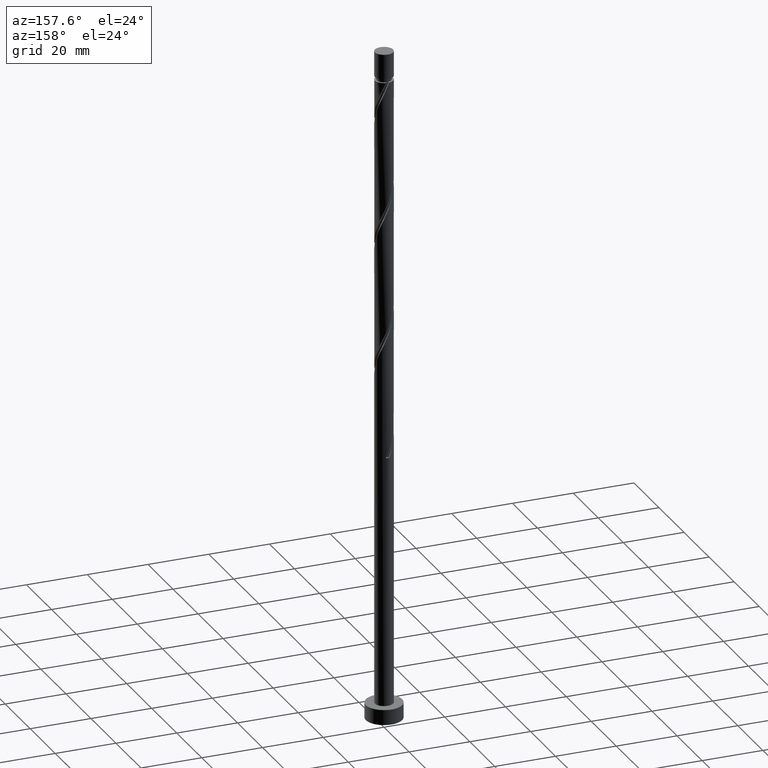
[diagram: clean part render]
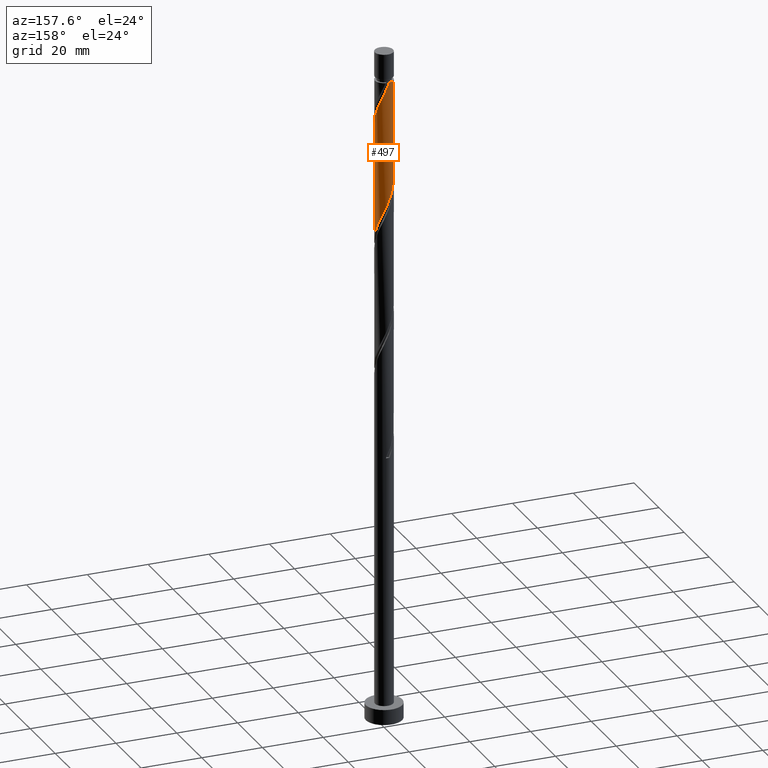
[diagram: same view with one face highlighted and labeled with its STEP entity id]
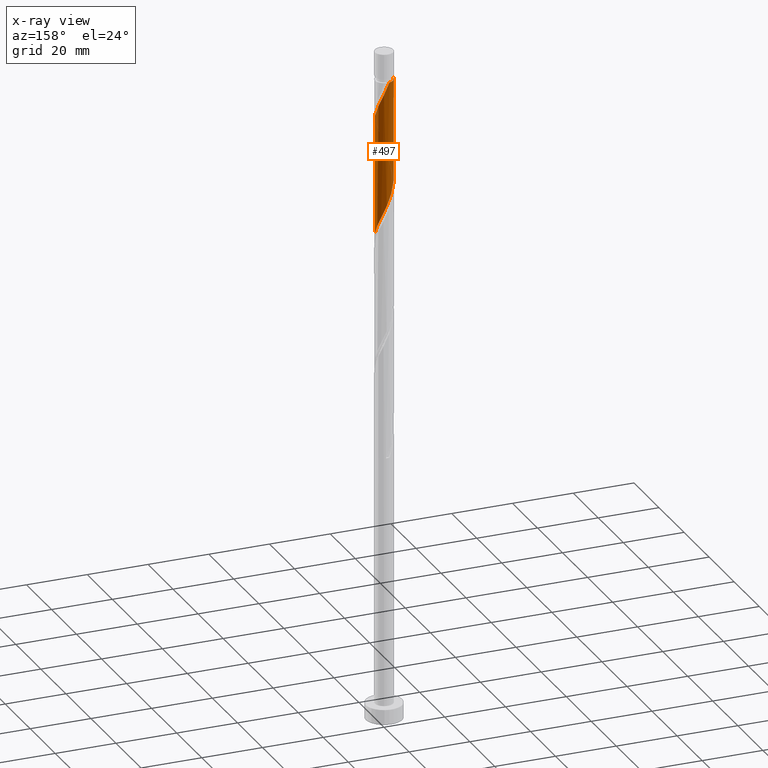
[diagram: x-ray of the same camera — body ghosted, the highlighted face saturated]
A machine part, auxiliary view. The second image highlights one B-rep face of the part: STEP entity #497.
The next image is the same camera in x-ray: the body ghosted, the highlighted face saturated — about 0% of this face is hidden behind the body in this view.
In plain terms, the highlighted cylindrical surface (edge-blend (fillet) strip) has radius 3 mm, axis along (-0, -0, -1).
Its self-contained STEP definition (entity closure, byte-faithful):
#19 = CARTESIAN_POINT ( 'NONE',  ( -1.187453060654100501, 2.778964719248851356, 174.9133954242154800 ) ) ;
#28 = CARTESIAN_POINT ( 'NONE',  ( 0.8376755528275025009, 2.880676946169974606, 209.3685236293436844 ) ) ;
#30 = CARTESIAN_POINT ( 'NONE',  ( -0.8376755528274981710, 2.880676946169970609, 174.1121133729334645 ) ) ;
#61 = ORIENTED_EDGE ( 'NONE', *, *, #1450, .T. ) ;
#91 = CARTESIAN_POINT ( 'NONE',  ( -0.2400118315905207245, 3.012488008736837308, 211.7723697831898164 ) ) ;
#160 = EDGE_CURVE ( 'NONE', #1292, #1351, #1623, .T. ) ;
#209 = DIRECTION ( 'NONE',  ( -1.000000000000000000, 0.000000000000000000, 0.000000000000000000 ) ) ;
#210 = EDGE_CURVE ( 'NONE', #1292, #1590, #600, .T. ) ;
#242 = CARTESIAN_POINT ( 'NONE',  ( -0.5969924622639600775, 2.940000000000005720, 212.5736518344719173 ) ) ;
#308 = CARTESIAN_POINT ( 'NONE',  ( 0.000000000000000000, 0.000000000000000000, 212.5736518344719173 ) ) ;
#319 = CARTESIAN_POINT ( 'NONE',  ( -1.817997620638345913, 2.414036937049628406, 176.5159595267795680 ) ) ;
#326 = CARTESIAN_POINT ( 'NONE',  ( 2.396435889809654718, 1.804742371096832443, 166.0992928601129393 ) ) ;
#333 = CARTESIAN_POINT ( 'NONE',  ( 1.817997620638352574, 2.414036937049630627, 206.9646774754975809 ) ) ;
#335 = CARTESIAN_POINT ( 'NONE',  ( 2.999999999999999556, -3.499689616789087966E-15, 161.8182403770304632 ) ) ;
#342 = VECTOR ( 'NONE', #1334, 1000.000000000000000 ) ;
#403 = CYLINDRICAL_SURFACE ( 'NONE', #1138, 3.000000000000000444 ) ;
#414 = CARTESIAN_POINT ( 'NONE',  ( 3.000000000000005329, 1.989139824927113045E-15, 200.8290632919133714 ) ) ;
#435 = CARTESIAN_POINT ( 'NONE',  ( -2.080442193850956745, 2.161425519892975711, 177.3172415780617541 ) ) ;
#455 = DIRECTION ( 'NONE',  ( -1.000000000000000000, 0.000000000000000000, 0.000000000000000000 ) ) ;
#463 = CARTESIAN_POINT ( 'NONE',  ( 1.283232999305657707, 2.711699295551224242, 169.3044210652411437 ) ) ;
#472 = CARTESIAN_POINT ( 'NONE',  ( 2.960644198141480388, 0.4843407189274804847, 162.8941646549847633 ) ) ;
#497 = ADVANCED_FACE ( 'NONE', ( #1807 ), #403, .T. ) ;
#566 = ORIENTED_EDGE ( 'NONE', *, *, #899, .F. ) ;
#588 = CARTESIAN_POINT ( 'NONE',  ( -3.000000000000000444, 0.000000000000000000, 222.0000000000000000 ) ) ;
#600 =( BOUNDED_CURVE ( )  B_SPLINE_CURVE ( 2, ( #414, #981, #1538, #841, #1124, #1037, #914, #1601, #1608, #333, #774, #894, #28, #1466, #627, #91, #242 ),
 .UNSPECIFIED., .F., .T. ) 
 B_SPLINE_CURVE_WITH_KNOTS ( ( 3, 2, 2, 2, 2, 2, 2, 2, 3 ),
 ( 0.6795271625973834384, 0.6826923076923077094, 0.6923076923076922906, 0.7019230769230768718, 0.7115384615384615641, 0.7211538461538460343, 0.7307692307692307265, 0.7403846153846153078, 0.7499999999999998890 ),
 .UNSPECIFIED. ) 
 CURVE ( )  GEOMETRIC_REPRESENTATION_ITEM ( )  RATIONAL_B_SPLINE_CURVE ( ( 0.9061636035682902879, 0.9069090390690790482, 0.9090909090909354839, 0.9024626128164390249, 0.9090909090909354839, 0.9024626128164390249, 0.9090909090909354839, 0.9024626128164390249, 0.9090909090909354839, 0.9024626128164390249, 0.9090909090909354839, 0.9024626128164390249, 0.9090909090909354839, 0.9024626128164390249, 0.9090909090909354839, 0.9024626128164391359, 0.9090909090909353729 ) ) 
 REPRESENTATION_ITEM ( '' )  );
#602 = CARTESIAN_POINT ( 'NONE',  ( -0.4878980450008949532, 2.982389173091087198, 173.3108313216513636 ) ) ;
#613 = CARTESIAN_POINT ( 'NONE',  ( -0.1239431067051841862, 2.997438590913959811, 172.5095492703693481 ) ) ;
#627 = CARTESIAN_POINT ( 'NONE',  ( 0.1239431067051879054, 2.997438590913966472, 210.9710877319078008 ) ) ;
#745 = LINE ( 'NONE', #588, #1053 ) ;
#774 = CARTESIAN_POINT ( 'NONE',  ( 1.502725340646228647, 2.596500828149243656, 207.7659595267796249 ) ) ;
#776 = CARTESIAN_POINT ( 'NONE',  ( 3.000000000000000444, 3.673940397442060361E-16, 222.0000000000000000 ) ) ;
#805 = VERTEX_POINT ( 'NONE', #1554 ) ;
#821 = CARTESIAN_POINT ( 'NONE',  ( 3.000000000000005329, 1.989139824927113045E-15, 200.8290632919133429 ) ) ;
#841 = CARTESIAN_POINT ( 'NONE',  ( 2.961593349985112589, 0.6013771789905498766, 202.1569851678052316 ) ) ;
#882 = CARTESIAN_POINT ( 'NONE',  ( -2.961593349985106816, 0.6013771789905504317, 181.3236518344719173 ) ) ;
#889 = CARTESIAN_POINT ( 'NONE',  ( 2.615571287713475357, 1.513762372691140889, 165.2980108088308384 ) ) ;
#894 = CARTESIAN_POINT ( 'NONE',  ( 1.187453060654104497, 2.778964719248856685, 208.5672415780616689 ) ) ;
#899 = EDGE_CURVE ( 'NONE', #805, #1352, #745, .T. ) ;
#914 = CARTESIAN_POINT ( 'NONE',  ( 2.537251308848763820, 1.600736016882631008, 204.5608313216514205 ) ) ;
#981 = CARTESIAN_POINT ( 'NONE',  ( 3.000000000000005329, 0.1193193910103084315, 201.0932342075463453 ) ) ;
#1003 = CARTESIAN_POINT ( 'NONE',  ( 2.999999999999999556, -3.499689616789087966E-15, 161.8182403770304632 ) ) ;
#1022 = CARTESIAN_POINT ( 'NONE',  ( -2.999999999999999112, 0.1193193910103067107, 182.3874027947307752 ) ) ;
#1030 = CARTESIAN_POINT ( 'NONE',  ( 1.612492905673892141, 2.555886599839282347, 168.5031390139590144 ) ) ;
#1037 = CARTESIAN_POINT ( 'NONE',  ( 2.731615850633954068, 1.292657931028937224, 203.7595492703693481 ) ) ;
#1053 = VECTOR ( 'NONE', #1172, 1000.000000000000000 ) ;
#1078 = AXIS2_PLACEMENT_3D ( 'NONE', #308, #1161, #455 ) ;
#1088 = DIRECTION ( 'NONE',  ( -0.000000000000000000, -0.000000000000000000, -1.000000000000000000 ) ) ;
#1105 = CARTESIAN_POINT ( 'NONE',  ( 0.000000000000000000, 0.000000000000000000, 222.0000000000000000 ) ) ;
#1124 = CARTESIAN_POINT ( 'NONE',  ( 2.846604600309534661, 0.9470175550097423844, 202.9582672190872756 ) ) ;
#1138 = AXIS2_PLACEMENT_3D ( 'NONE', #1105, #1088, #209 ) ;
#1141 = CARTESIAN_POINT ( 'NONE',  ( -2.999999999999999112, -4.681208760918736224E-15, 182.6515737103637491 ) ) ;
#1150 = CARTESIAN_POINT ( 'NONE',  ( -2.731615850633948739, 1.292657931028936336, 179.7210877319078008 ) ) ;
#1161 = DIRECTION ( 'NONE',  ( -0.000000000000000000, -0.000000000000000000, -1.000000000000000000 ) ) ;
#1169 = CARTESIAN_POINT ( 'NONE',  ( 0.5969924622639736222, 2.940000000000001279, 170.9069851678052316 ) ) ;
#1172 = DIRECTION ( 'NONE',  ( -0.000000000000000000, -0.000000000000000000, -1.000000000000000000 ) ) ;
#1181 = CARTESIAN_POINT ( 'NONE',  ( 2.758702937603743077, 1.178795190886219757, 164.4967287575488513 ) ) ;
#1214 = ORIENTED_EDGE ( 'NONE', *, *, #160, .T. ) ;
#1219 = ORIENTED_EDGE ( 'NONE', *, *, #210, .F. ) ;
#1238 =( BOUNDED_CURVE ( )  B_SPLINE_CURVE ( 2, ( #1141, #1022, #1449, #882, #1303, #1150, #1714, #1295, #435, #319, #1432, #19, #30, #602, #613, #1582, #1169, #1733, #463, #1030, #1592, #1551, #326, #889, #1181, #1742, #472, #1603, #335 ),
 .UNSPECIFIED., .F., .T. ) 
 B_SPLINE_CURVE_WITH_KNOTS ( ( 3, 2, 2, 2, 2, 2, 2, 2, 2, 2, 2, 2, 2, 2, 3 ),
 ( 0.4295271625973833274, 0.4326923076923077094, 0.4423076923076922906, 0.4519230769230769273, 0.4615384615384615641, 0.4711538461538461453, 0.4807692307692307820, 0.4903846153846153633, 0.5000000000000000000, 0.5096153846153845812, 0.5192307692307692735, 0.5288461538461538547, 0.5384615384615384359, 0.5480769230769231282, 0.5545271625973833274 ),
 .UNSPECIFIED. ) 
 CURVE ( )  GEOMETRIC_REPRESENTATION_ITEM ( )  RATIONAL_B_SPLINE_CURVE ( ( 0.9061636035682822943, 0.9069090390690709436, 0.9090909090909273793, 0.9024626128164311423, 0.9090909090909273793, 0.9024626128164311423, 0.9090909090909273793, 0.9024626128164311423, 0.9090909090909273793, 0.9024626128164311423, 0.9090909090909273793, 0.9024626128164311423, 0.9090909090909273793, 0.9024626128164311423, 0.9090909090909273793, 0.9024626128164311423, 0.9090909090909273793, 0.9024626128164311423, 0.9090909090909273793, 0.9024626128164311423, 0.9090909090909273793, 0.9024626128164311423, 0.9090909090909273793, 0.9024626128164311423, 0.9090909090909273793, 0.9024626128164311423, 0.9090909090909273793, 0.9046444828382875780, 0.9061636035682822943 ) ) 
 REPRESENTATION_ITEM ( '' )  );
#1292 = VERTEX_POINT ( 'NONE', #821 ) ;
#1295 = CARTESIAN_POINT ( 'NONE',  ( -2.342886767063566023, 1.908814102736321461, 178.1185236293436844 ) ) ;
#1303 = CARTESIAN_POINT ( 'NONE',  ( -2.846604600309527111, 0.9470175550097436057, 180.5223697831899017 ) ) ;
#1310 = CIRCLE ( 'NONE', #1078, 2.999999999999986677 ) ;
#1334 = DIRECTION ( 'NONE',  ( -0.000000000000000000, -0.000000000000000000, -1.000000000000000000 ) ) ;
#1351 = VERTEX_POINT ( 'NONE', #1003 ) ;
#1352 = VERTEX_POINT ( 'NONE', #1704 ) ;
#1432 = CARTESIAN_POINT ( 'NONE',  ( -1.502725340646223762, 2.596500828149240547, 175.7146774754976093 ) ) ;
#1449 = CARTESIAN_POINT ( 'NONE',  ( -2.990523579387028619, 0.2382618751084440989, 182.1249338857539612 ) ) ;
#1450 = EDGE_CURVE ( 'NONE', #805, #1590, #1310, .T. ) ;
#1466 = CARTESIAN_POINT ( 'NONE',  ( 0.4878980450008980063, 2.982389173091094747, 210.1698056806257284 ) ) ;
#1538 = CARTESIAN_POINT ( 'NONE',  ( 2.990523579387034392, 0.2382618751084419340, 201.3557031165232445 ) ) ;
#1549 = EDGE_CURVE ( 'NONE', #1352, #1351, #1238, .T. ) ;
#1551 = CARTESIAN_POINT ( 'NONE',  ( 2.177300491905828750, 2.095722369502523108, 166.9005749113948980 ) ) ;
#1554 = CARTESIAN_POINT ( 'NONE',  ( -2.999999999999986677, 0.000000000000000000, 212.5736518344719173 ) ) ;
#1582 = CARTESIAN_POINT ( 'NONE',  ( 0.2400118315905267752, 3.012488008736830647, 171.7082672190872756 ) ) ;
#1590 = VERTEX_POINT ( 'NONE', #1766 ) ;
#1592 = CARTESIAN_POINT ( 'NONE',  ( 1.894896698789862333, 2.325804484670902728, 167.7018569626770272 ) ) ;
#1601 = CARTESIAN_POINT ( 'NONE',  ( 2.342886767063573572, 1.908814102736323237, 205.3621133729334645 ) ) ;
#1603 = CARTESIAN_POINT ( 'NONE',  ( 2.999999999999999556, 0.2437693156111348791, 162.3579411143787752 ) ) ;
#1608 = CARTESIAN_POINT ( 'NONE',  ( 2.080442193850961630, 2.161425519892978819, 206.1633954242155085 ) ) ;
#1623 = LINE ( 'NONE', #776, #342 ) ;
#1693 = EDGE_LOOP ( 'NONE', ( #1219, #1214, #1726, #566, #61 ) ) ;
#1704 = CARTESIAN_POINT ( 'NONE',  ( -2.999999999999999112, -4.681208760918735436E-15, 182.6515737103637491 ) ) ;
#1714 = CARTESIAN_POINT ( 'NONE',  ( -2.537251308848758047, 1.600736016882629675, 178.9198056806257568 ) ) ;
#1726 = ORIENTED_EDGE ( 'NONE', *, *, #1549, .F. ) ;
#1733 = CARTESIAN_POINT ( 'NONE',  ( 0.9539730929374200530, 2.867511991263166582, 170.1057031165231308 ) ) ;
#1742 = CARTESIAN_POINT ( 'NONE',  ( 2.901834587494009909, 0.8438280090812966261, 163.6954467062667504 ) ) ;
#1766 = CARTESIAN_POINT ( 'NONE',  ( -0.5969924622639600775, 2.940000000000005720, 212.5736518344719173 ) ) ;
#1807 = FACE_OUTER_BOUND ( 'NONE', #1693, .T. ) ;